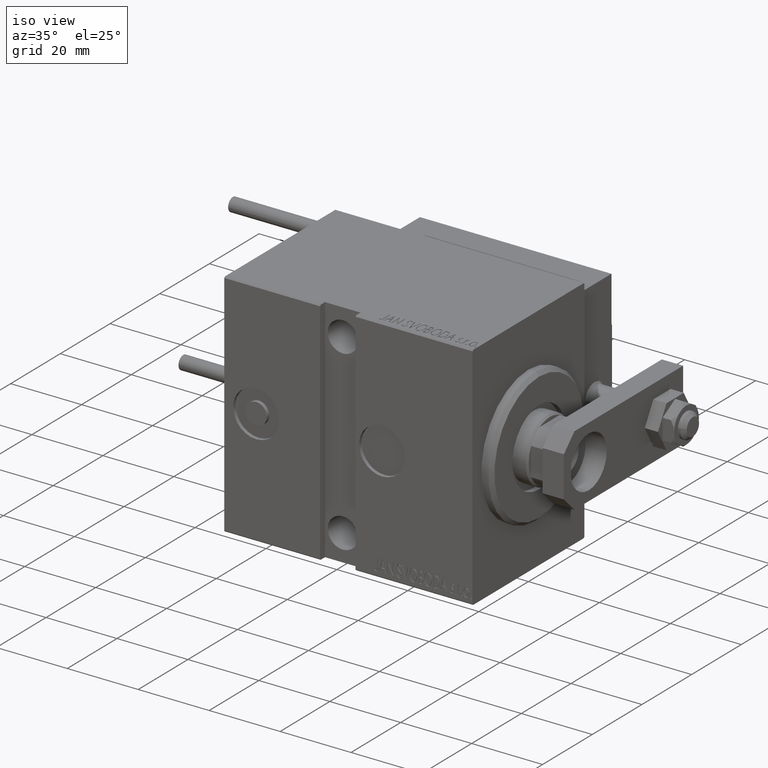
[diagram: clean part render]
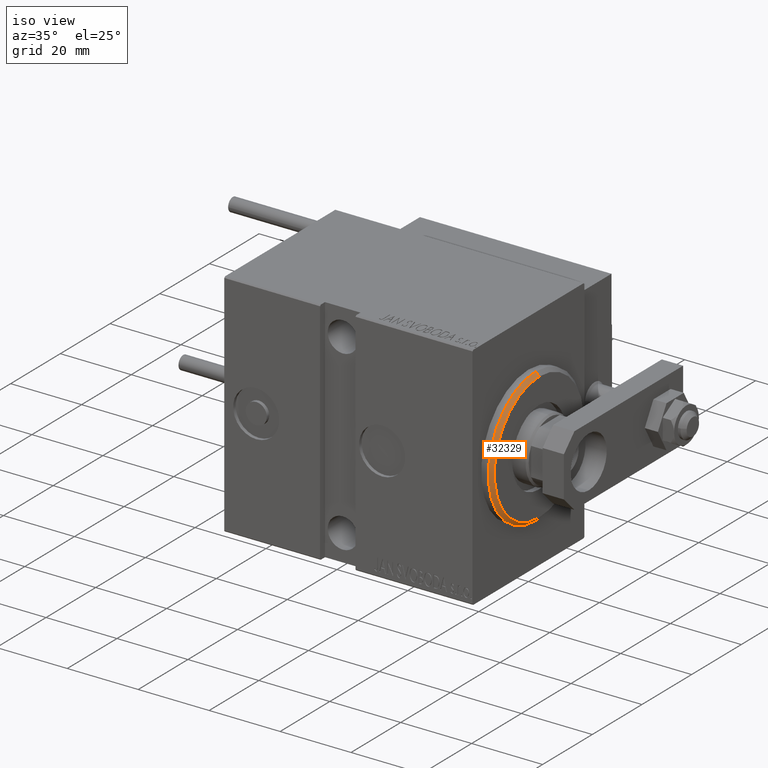
[diagram: same view with one face highlighted and labeled with its STEP entity id]
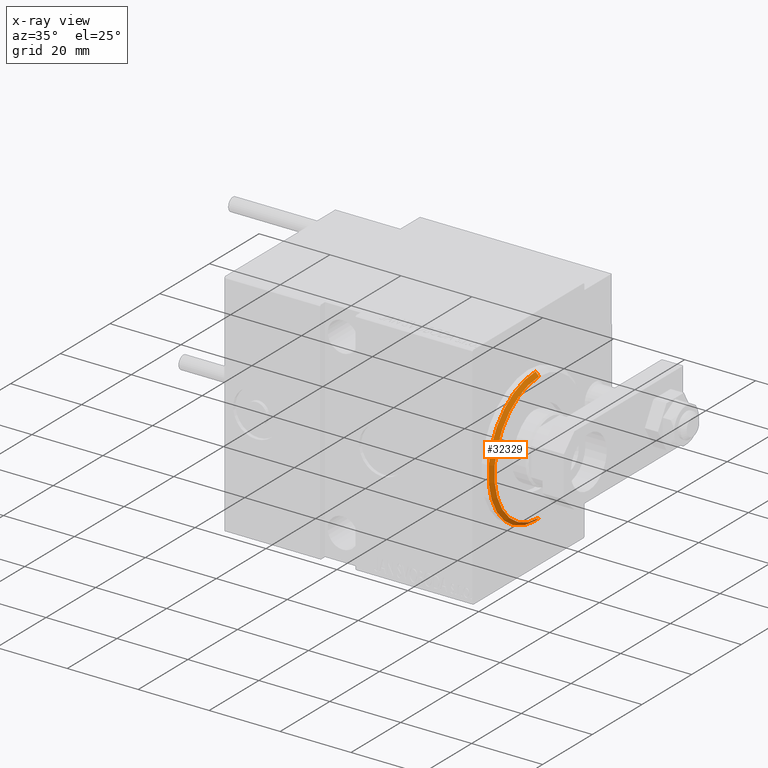
[diagram: x-ray of the same camera — body ghosted, the highlighted face saturated]
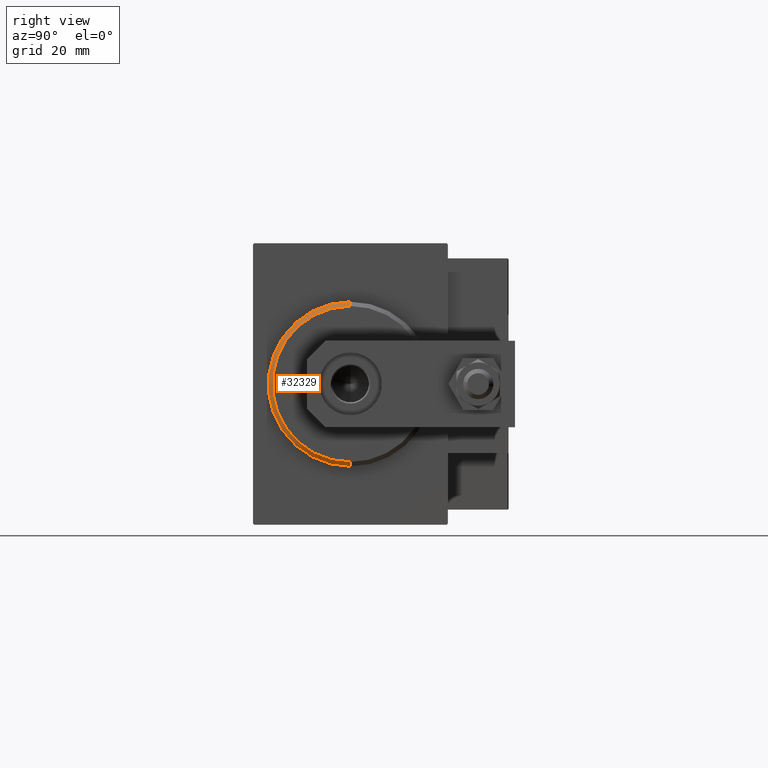
[diagram: same view with one face highlighted and labeled with its STEP entity id]
A machine part, iso view. The second image highlights one B-rep face of the part: STEP entity #32329.
The next image is the same camera in x-ray: the body ghosted, the highlighted face saturated — about 0% of this face is hidden behind the body in this view.
A second angle (right view) of the same face is appended — the face is thin or edge-on in the first view.
In plain terms, the highlighted conical surface has half-angle 45 deg.
Its self-contained STEP definition (entity closure, byte-faithful):
#433 = DIRECTION ( 'NONE',  ( -1.000000000000000000, 0.000000000000000000, 0.000000000000000000 ) ) ;
#3760 = LINE ( 'NONE', #7280, #33716 ) ;
#5248 = DIRECTION ( 'NONE',  ( -0.7071067811865487940, 0.000000000000000000, 0.7071067811865463515 ) ) ;
#6749 = ORIENTED_EDGE ( 'NONE', *, *, #37459, .F. ) ;
#7280 = CARTESIAN_POINT ( 'NONE',  ( 3.000000000000000000, 2.204364238465235033E-15, -17.99999999999999645 ) ) ;
#8613 = EDGE_CURVE ( 'NONE', #11240, #13900, #3760, .T. ) ;
#11007 = DIRECTION ( 'NONE',  ( -1.000000000000000000, 0.000000000000000000, 0.000000000000000000 ) ) ;
#11240 = VERTEX_POINT ( 'NONE', #14343 ) ;
#13900 = VERTEX_POINT ( 'NONE', #21862 ) ;
#14275 = CARTESIAN_POINT ( 'NONE',  ( 3.000000000000000000, 0.000000000000000000, 17.99999999999999645 ) ) ;
#14343 = CARTESIAN_POINT ( 'NONE',  ( 3.000000000000000000, 2.265596578422603002E-15, -17.99999999999999645 ) ) ;
#17957 = EDGE_LOOP ( 'NONE', ( #37285, #22128, #21410, #6749 ) ) ;
#20225 = FACE_OUTER_BOUND ( 'NONE', #17957, .T. ) ;
#21410 = ORIENTED_EDGE ( 'NONE', *, *, #25798, .T. ) ;
#21679 = CARTESIAN_POINT ( 'NONE',  ( 3.000000000000000000, 0.000000000000000000, 0.000000000000000000 ) ) ;
#21862 = CARTESIAN_POINT ( 'NONE',  ( 1.999999999999992228, 2.326828918379970970E-15, -19.00000000000000000 ) ) ;
#22128 = ORIENTED_EDGE ( 'NONE', *, *, #27698, .F. ) ;
#22404 = DIRECTION ( 'NONE',  ( 0.000000000000000000, 0.000000000000000000, -1.000000000000000000 ) ) ;
#24773 = CARTESIAN_POINT ( 'NONE',  ( 3.000000000000000000, 0.000000000000000000, 17.99999999999999645 ) ) ;
#24997 = CIRCLE ( 'NONE', #36190, 19.00000000000000000 ) ;
#25798 = EDGE_CURVE ( 'NONE', #38164, #28472, #43796, .T. ) ;
#27182 = AXIS2_PLACEMENT_3D ( 'NONE', #21679, #37436, #22404 ) ;
#27698 = EDGE_CURVE ( 'NONE', #38164, #11240, #39972, .T. ) ;
#28472 = VERTEX_POINT ( 'NONE', #33214 ) ;
#31504 = CARTESIAN_POINT ( 'NONE',  ( 3.000000000000000000, 0.000000000000000000, 0.000000000000000000 ) ) ;
#32329 = ADVANCED_FACE ( 'NONE', ( #20225 ), #34408, .T. ) ;
#33214 = CARTESIAN_POINT ( 'NONE',  ( 1.999999999999992228, 0.000000000000000000, 19.00000000000000000 ) ) ;
#33716 = VECTOR ( 'NONE', #45124, 1000.000000000000000 ) ;
#34408 = CONICAL_SURFACE ( 'NONE', #44813, 17.99999999999999645, 0.7853981633974466137 ) ;
#34557 = DIRECTION ( 'NONE',  ( 0.000000000000000000, 0.000000000000000000, -1.000000000000000000 ) ) ;
#36190 = AXIS2_PLACEMENT_3D ( 'NONE', #49109, #11007, #34557 ) ;
#37285 = ORIENTED_EDGE ( 'NONE', *, *, #8613, .F. ) ;
#37436 = DIRECTION ( 'NONE',  ( 1.000000000000000000, -0.000000000000000000, 0.000000000000000000 ) ) ;
#37459 = EDGE_CURVE ( 'NONE', #13900, #28472, #24997, .T. ) ;
#38164 = VERTEX_POINT ( 'NONE', #14275 ) ;
#39117 = VECTOR ( 'NONE', #5248, 1000.000000000000000 ) ;
#39972 = CIRCLE ( 'NONE', #27182, 17.99999999999999645 ) ;
#42538 = DIRECTION ( 'NONE',  ( 0.000000000000000000, 0.000000000000000000, 1.000000000000000000 ) ) ;
#43796 = LINE ( 'NONE', #24773, #39117 ) ;
#44813 = AXIS2_PLACEMENT_3D ( 'NONE', #31504, #433, #42538 ) ;
#45124 = DIRECTION ( 'NONE',  ( -0.7071067811865487940, 8.659560562354918067E-17, -0.7071067811865463515 ) ) ;
#49109 = CARTESIAN_POINT ( 'NONE',  ( 1.999999999999992228, 0.000000000000000000, 0.000000000000000000 ) ) ;